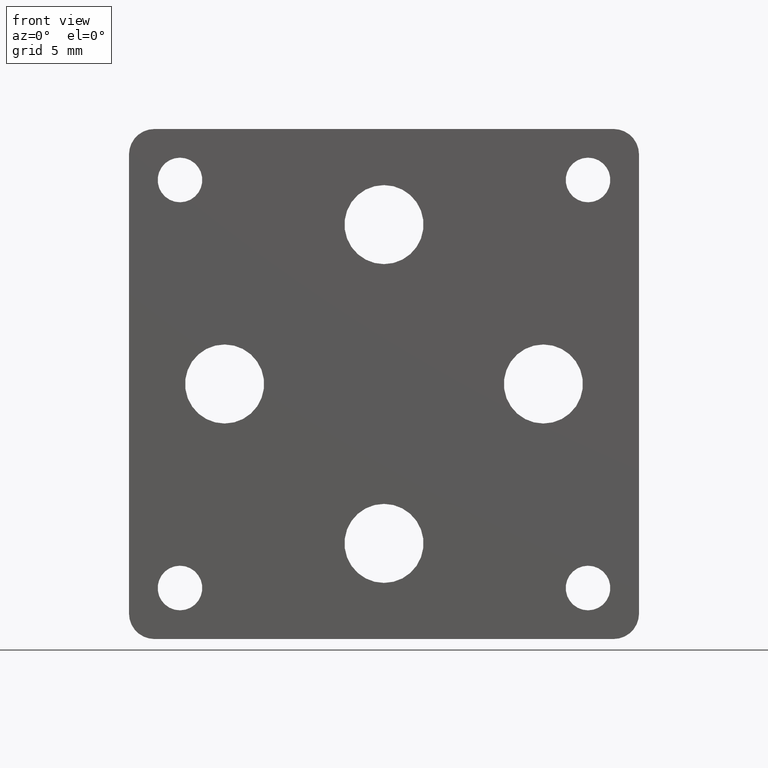
[diagram: clean part render]
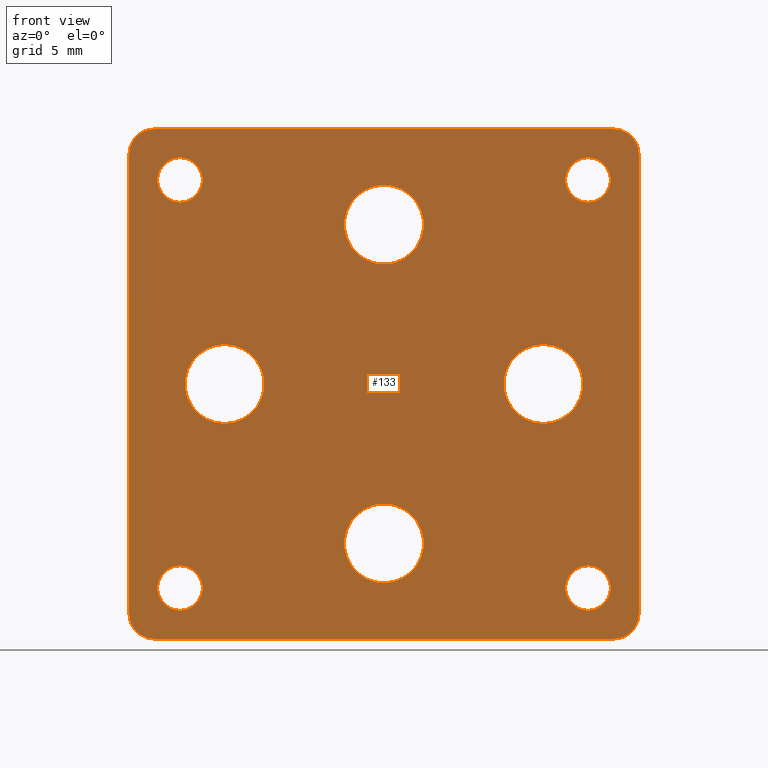
[diagram: same view with one face highlighted and labeled with its STEP entity id]
A machine part, front view. The second image highlights one B-rep face of the part: STEP entity #133.
In plain terms, the highlighted planar face has unit normal (0, -1, 0).
Its self-contained STEP definition (entity closure, byte-faithful):
#2 = FACE_BOUND ( 'NONE', #173, .T. ) ;
#3 = CARTESIAN_POINT ( 'NONE',  ( 16.00000000000000000, 0.000000000000000000, -14.25000000000000000 ) ) ;
#9 = VERTEX_POINT ( 'NONE', #383 ) ;
#19 = DIRECTION ( 'NONE',  ( 3.469446951953614682E-16, -0.000000000000000000, 1.000000000000000000 ) ) ;
#20 = EDGE_LOOP ( 'NONE', ( #718 ) ) ;
#29 = DIRECTION ( 'NONE',  ( 0.000000000000000000, 0.000000000000000000, -1.000000000000000000 ) ) ;
#32 = EDGE_CURVE ( 'NONE', #285, #285, #641, .T. ) ;
#33 = DIRECTION ( 'NONE',  ( 0.000000000000000000, 1.000000000000000000, 0.000000000000000000 ) ) ;
#34 = ORIENTED_EDGE ( 'NONE', *, *, #80, .T. ) ;
#37 = ORIENTED_EDGE ( 'NONE', *, *, #721, .T. ) ;
#38 = AXIS2_PLACEMENT_3D ( 'NONE', #200, #82, #580 ) ;
#46 = ORIENTED_EDGE ( 'NONE', *, *, #778, .T. ) ;
#47 = AXIS2_PLACEMENT_3D ( 'NONE', #271, #644, #781 ) ;
#68 = DIRECTION ( 'NONE',  ( 0.000000000000000000, -1.000000000000000000, 0.000000000000000000 ) ) ;
#71 = LINE ( 'NONE', #296, #222 ) ;
#78 = VERTEX_POINT ( 'NONE', #704 ) ;
#80 = EDGE_CURVE ( 'NONE', #333, #459, #550, .T. ) ;
#82 = DIRECTION ( 'NONE',  ( 0.000000000000000000, -1.000000000000000000, 0.000000000000000000 ) ) ;
#91 = EDGE_CURVE ( 'NONE', #309, #181, #424, .T. ) ;
#94 = EDGE_LOOP ( 'NONE', ( #529 ) ) ;
#103 = VERTEX_POINT ( 'NONE', #746 ) ;
#112 = CIRCLE ( 'NONE', #38, 2.000000000000001776 ) ;
#120 = AXIS2_PLACEMENT_3D ( 'NONE', #239, #156, #717 ) ;
#131 = DIRECTION ( 'NONE',  ( 0.000000000000000000, 1.000000000000000000, 0.000000000000000000 ) ) ;
#132 = VERTEX_POINT ( 'NONE', #3 ) ;
#133 = ADVANCED_FACE ( 'NONE', ( #618, #2, #561, #754, #421, #242, #620, #437, #182 ), #235, .T. ) ;
#134 = CIRCLE ( 'NONE', #469, 3.100000000000000533 ) ;
#135 = CARTESIAN_POINT ( 'NONE',  ( 16.00000000000000000, 0.000000000000000000, -16.00000000000000000 ) ) ;
#142 = DIRECTION ( 'NONE',  ( 0.000000000000000000, 1.000000000000000000, 0.000000000000000000 ) ) ;
#143 = EDGE_LOOP ( 'NONE', ( #37 ) ) ;
#146 = ORIENTED_EDGE ( 'NONE', *, *, #169, .T. ) ;
#149 = CARTESIAN_POINT ( 'NONE',  ( 0.000000000000000000, 0.000000000000000000, -12.50000000000000000 ) ) ;
#150 = ORIENTED_EDGE ( 'NONE', *, *, #279, .T. ) ;
#156 = DIRECTION ( 'NONE',  ( 0.000000000000000000, -1.000000000000000000, 0.000000000000000000 ) ) ;
#159 = ORIENTED_EDGE ( 'NONE', *, *, #297, .T. ) ;
#169 = EDGE_CURVE ( 'NONE', #722, #722, #768, .T. ) ;
#173 = EDGE_LOOP ( 'NONE', ( #411 ) ) ;
#174 = DIRECTION ( 'NONE',  ( 0.000000000000000000, -1.000000000000000000, 0.000000000000000000 ) ) ;
#177 = DIRECTION ( 'NONE',  ( 0.000000000000000000, 0.000000000000000000, -1.000000000000000000 ) ) ;
#178 = CIRCLE ( 'NONE', #738, 3.100000000000000533 ) ;
#179 = AXIS2_PLACEMENT_3D ( 'NONE', #458, #462, #274 ) ;
#181 = VERTEX_POINT ( 'NONE', #319 ) ;
#182 = FACE_BOUND ( 'NONE', #94, .T. ) ;
#184 = CARTESIAN_POINT ( 'NONE',  ( 18.00000000000000711, 0.000000000000000000, -20.00000000000000000 ) ) ;
#187 = CARTESIAN_POINT ( 'NONE',  ( -19.99999999999998579, 0.000000000000000000, 20.00000000000000355 ) ) ;
#189 = CARTESIAN_POINT ( 'NONE',  ( 20.00000000000000000, 0.000000000000000000, 20.00000000000000000 ) ) ;
#193 = CIRCLE ( 'NONE', #120, 2.000000000000001776 ) ;
#200 = CARTESIAN_POINT ( 'NONE',  ( -17.99999999999998934, 0.000000000000000000, 18.00000000000000355 ) ) ;
#205 = DIRECTION ( 'NONE',  ( 0.000000000000000000, 0.000000000000000000, 1.000000000000000000 ) ) ;
#222 = VECTOR ( 'NONE', #306, 1000.000000000000000 ) ;
#225 = CARTESIAN_POINT ( 'NONE',  ( -16.00000000000000000, 0.000000000000000000, 16.00000000000000000 ) ) ;
#233 = AXIS2_PLACEMENT_3D ( 'NONE', #548, #745, #369 ) ;
#235 = PLANE ( 'NONE',  #603 ) ;
#239 = CARTESIAN_POINT ( 'NONE',  ( 18.00000000000000711, 0.000000000000000000, -18.00000000000000355 ) ) ;
#240 = CARTESIAN_POINT ( 'NONE',  ( -18.00000000000000355, 0.000000000000000000, -19.99999999999998579 ) ) ;
#242 = FACE_BOUND ( 'NONE', #20, .T. ) ;
#247 = LINE ( 'NONE', #189, #729 ) ;
#251 = ORIENTED_EDGE ( 'NONE', *, *, #481, .F. ) ;
#271 = CARTESIAN_POINT ( 'NONE',  ( 12.50000000000000178, 0.000000000000000000, -3.061616997868383043E-15 ) ) ;
#274 = DIRECTION ( 'NONE',  ( 0.000000000000000000, 0.000000000000000000, 1.000000000000000000 ) ) ;
#279 = EDGE_CURVE ( 'NONE', #103, #103, #507, .T. ) ;
#285 = VERTEX_POINT ( 'NONE', #598 ) ;
#288 = AXIS2_PLACEMENT_3D ( 'NONE', #652, #658, #473 ) ;
#292 = DIRECTION ( 'NONE',  ( 0.000000000000000000, 0.000000000000000000, 1.000000000000000000 ) ) ;
#296 = CARTESIAN_POINT ( 'NONE',  ( -20.00000000000000000, 0.000000000000000000, -19.99999999999998579 ) ) ;
#297 = EDGE_CURVE ( 'NONE', #309, #327, #112, .T. ) ;
#306 = DIRECTION ( 'NONE',  ( -1.000000000000000000, -0.000000000000000000, 3.469446951953614189E-16 ) ) ;
#307 = CARTESIAN_POINT ( 'NONE',  ( -18.00000000000000355, 0.000000000000000000, -17.99999999999998934 ) ) ;
#309 = VERTEX_POINT ( 'NONE', #649 ) ;
#319 = CARTESIAN_POINT ( 'NONE',  ( 18.00000000000000711, 0.000000000000000000, 20.00000000000000000 ) ) ;
#325 = CIRCLE ( 'NONE', #288, 1.999999999999998224 ) ;
#327 = VERTEX_POINT ( 'NONE', #503 ) ;
#333 = VERTEX_POINT ( 'NONE', #767 ) ;
#342 = VECTOR ( 'NONE', #489, 1000.000000000000000 ) ;
#351 = EDGE_LOOP ( 'NONE', ( #782 ) ) ;
#354 = AXIS2_PLACEMENT_3D ( 'NONE', #307, #174, #177 ) ;
#360 = DIRECTION ( 'NONE',  ( 0.000000000000000000, 0.000000000000000000, -1.000000000000000000 ) ) ;
#362 = AXIS2_PLACEMENT_3D ( 'NONE', #135, #142, #570 ) ;
#369 = DIRECTION ( 'NONE',  ( 0.000000000000000000, 0.000000000000000000, 1.000000000000000000 ) ) ;
#370 = EDGE_CURVE ( 'NONE', #668, #668, #711, .T. ) ;
#372 = DIRECTION ( 'NONE',  ( 0.000000000000000000, 0.000000000000000000, 1.000000000000000000 ) ) ;
#383 = CARTESIAN_POINT ( 'NONE',  ( 0.000000000000000000, 0.000000000000000000, -9.400000000000000355 ) ) ;
#389 = CARTESIAN_POINT ( 'NONE',  ( 0.000000000000000000, 0.000000000000000000, 12.50000000000000000 ) ) ;
#411 = ORIENTED_EDGE ( 'NONE', *, *, #370, .T. ) ;
#415 = VECTOR ( 'NONE', #19, 1000.000000000000000 ) ;
#421 = FACE_OUTER_BOUND ( 'NONE', #669, .T. ) ;
#424 = LINE ( 'NONE', #187, #342 ) ;
#429 = CARTESIAN_POINT ( 'NONE',  ( 0.000000000000000000, 0.000000000000000000, 0.000000000000000000 ) ) ;
#437 = FACE_BOUND ( 'NONE', #143, .T. ) ;
#442 = AXIS2_PLACEMENT_3D ( 'NONE', #485, #131, #372 ) ;
#458 = CARTESIAN_POINT ( 'NONE',  ( -12.49999999999999822, 0.000000000000000000, 0.000000000000000000 ) ) ;
#459 = VERTEX_POINT ( 'NONE', #240 ) ;
#460 = CARTESIAN_POINT ( 'NONE',  ( 20.00000000000000000, 0.000000000000000000, 18.00000000000000000 ) ) ;
#462 = DIRECTION ( 'NONE',  ( 0.000000000000000000, 1.000000000000000000, 0.000000000000000000 ) ) ;
#464 = VERTEX_POINT ( 'NONE', #184 ) ;
#469 = AXIS2_PLACEMENT_3D ( 'NONE', #149, #33, #205 ) ;
#473 = DIRECTION ( 'NONE',  ( 0.000000000000000000, 0.000000000000000000, -1.000000000000000000 ) ) ;
#474 = VERTEX_POINT ( 'NONE', #610 ) ;
#481 = EDGE_CURVE ( 'NONE', #464, #459, #71, .T. ) ;
#485 = CARTESIAN_POINT ( 'NONE',  ( 16.00000000000000000, 0.000000000000000000, 16.00000000000000000 ) ) ;
#489 = DIRECTION ( 'NONE',  ( 1.000000000000000000, 0.000000000000000000, -8.673617379884037937E-17 ) ) ;
#490 = CIRCLE ( 'NONE', #47, 3.100000000000000533 ) ;
#495 = CARTESIAN_POINT ( 'NONE',  ( 0.000000000000000000, 0.000000000000000000, 9.400000000000000355 ) ) ;
#503 = CARTESIAN_POINT ( 'NONE',  ( -19.99999999999998579, 0.000000000000000000, 18.00000000000000355 ) ) ;
#504 = EDGE_CURVE ( 'NONE', #635, #474, #247, .T. ) ;
#507 = CIRCLE ( 'NONE', #179, 3.100000000000000533 ) ;
#509 = LINE ( 'NONE', #702, #415 ) ;
#529 = ORIENTED_EDGE ( 'NONE', *, *, #694, .T. ) ;
#532 = CARTESIAN_POINT ( 'NONE',  ( 16.00000000000000000, 0.000000000000000000, 17.75000000000000355 ) ) ;
#548 = CARTESIAN_POINT ( 'NONE',  ( -16.00000000000000000, 0.000000000000000000, -16.00000000000000000 ) ) ;
#550 = CIRCLE ( 'NONE', #354, 2.000000000000001776 ) ;
#561 = FACE_BOUND ( 'NONE', #351, .T. ) ;
#570 = DIRECTION ( 'NONE',  ( 0.000000000000000000, 0.000000000000000000, 1.000000000000000000 ) ) ;
#580 = DIRECTION ( 'NONE',  ( 0.000000000000000000, 0.000000000000000000, -1.000000000000000000 ) ) ;
#583 = EDGE_LOOP ( 'NONE', ( #146 ) ) ;
#587 = ORIENTED_EDGE ( 'NONE', *, *, #783, .T. ) ;
#591 = EDGE_CURVE ( 'NONE', #132, #132, #724, .T. ) ;
#598 = CARTESIAN_POINT ( 'NONE',  ( -16.00000000000000000, 0.000000000000000000, -14.25000000000000000 ) ) ;
#603 = AXIS2_PLACEMENT_3D ( 'NONE', #429, #68, #681 ) ;
#608 = CARTESIAN_POINT ( 'NONE',  ( -16.00000000000000000, 0.000000000000000000, 17.75000000000000355 ) ) ;
#610 = CARTESIAN_POINT ( 'NONE',  ( 20.00000000000000000, 0.000000000000000000, -18.00000000000000711 ) ) ;
#618 = FACE_BOUND ( 'NONE', #583, .T. ) ;
#620 = FACE_BOUND ( 'NONE', #666, .T. ) ;
#622 = EDGE_CURVE ( 'NONE', #78, #78, #490, .T. ) ;
#630 = EDGE_CURVE ( 'NONE', #333, #327, #509, .T. ) ;
#635 = VERTEX_POINT ( 'NONE', #460 ) ;
#641 = CIRCLE ( 'NONE', #233, 1.749999999999999778 ) ;
#644 = DIRECTION ( 'NONE',  ( 0.000000000000000000, 1.000000000000000000, -0.000000000000000000 ) ) ;
#648 = ORIENTED_EDGE ( 'NONE', *, *, #591, .T. ) ;
#649 = CARTESIAN_POINT ( 'NONE',  ( -17.99999999999998934, 0.000000000000000000, 20.00000000000000355 ) ) ;
#652 = CARTESIAN_POINT ( 'NONE',  ( 18.00000000000000355, 0.000000000000000000, 18.00000000000000000 ) ) ;
#658 = DIRECTION ( 'NONE',  ( 0.000000000000000000, -1.000000000000000000, 0.000000000000000000 ) ) ;
#666 = EDGE_LOOP ( 'NONE', ( #648 ) ) ;
#668 = VERTEX_POINT ( 'NONE', #608 ) ;
#669 = EDGE_LOOP ( 'NONE', ( #251, #587, #798, #46, #800, #159, #697, #34 ) ) ;
#675 = DIRECTION ( 'NONE',  ( 0.000000000000000000, 1.000000000000000000, 0.000000000000000000 ) ) ;
#681 = DIRECTION ( 'NONE',  ( 0.000000000000000000, -0.000000000000000000, -1.000000000000000000 ) ) ;
#690 = VERTEX_POINT ( 'NONE', #495 ) ;
#694 = EDGE_CURVE ( 'NONE', #690, #690, #178, .T. ) ;
#697 = ORIENTED_EDGE ( 'NONE', *, *, #630, .F. ) ;
#701 = AXIS2_PLACEMENT_3D ( 'NONE', #225, #675, #292 ) ;
#702 = CARTESIAN_POINT ( 'NONE',  ( -19.99999999999998579, 0.000000000000000000, 20.00000000000000355 ) ) ;
#704 = CARTESIAN_POINT ( 'NONE',  ( 12.50000000000000178, 0.000000000000000000, -3.100000000000003197 ) ) ;
#708 = DIRECTION ( 'NONE',  ( 0.000000000000000000, 1.000000000000000000, -0.000000000000000000 ) ) ;
#711 = CIRCLE ( 'NONE', #701, 1.750000000000001554 ) ;
#717 = DIRECTION ( 'NONE',  ( 0.000000000000000000, 0.000000000000000000, -1.000000000000000000 ) ) ;
#718 = ORIENTED_EDGE ( 'NONE', *, *, #622, .T. ) ;
#721 = EDGE_CURVE ( 'NONE', #9, #9, #134, .T. ) ;
#722 = VERTEX_POINT ( 'NONE', #532 ) ;
#724 = CIRCLE ( 'NONE', #362, 1.749999999999999778 ) ;
#729 = VECTOR ( 'NONE', #360, 1000.000000000000000 ) ;
#738 = AXIS2_PLACEMENT_3D ( 'NONE', #389, #708, #29 ) ;
#745 = DIRECTION ( 'NONE',  ( 0.000000000000000000, 1.000000000000000000, 0.000000000000000000 ) ) ;
#746 = CARTESIAN_POINT ( 'NONE',  ( -12.49999999999999822, 0.000000000000000000, 3.100000000000000533 ) ) ;
#754 = FACE_BOUND ( 'NONE', #787, .T. ) ;
#767 = CARTESIAN_POINT ( 'NONE',  ( -20.00000000000000000, 0.000000000000000000, -17.99999999999998934 ) ) ;
#768 = CIRCLE ( 'NONE', #442, 1.750000000000001554 ) ;
#778 = EDGE_CURVE ( 'NONE', #635, #181, #325, .T. ) ;
#781 = DIRECTION ( 'NONE',  ( 0.000000000000000000, 0.000000000000000000, -1.000000000000000000 ) ) ;
#782 = ORIENTED_EDGE ( 'NONE', *, *, #32, .T. ) ;
#783 = EDGE_CURVE ( 'NONE', #464, #474, #193, .T. ) ;
#787 = EDGE_LOOP ( 'NONE', ( #150 ) ) ;
#798 = ORIENTED_EDGE ( 'NONE', *, *, #504, .F. ) ;
#800 = ORIENTED_EDGE ( 'NONE', *, *, #91, .F. ) ;